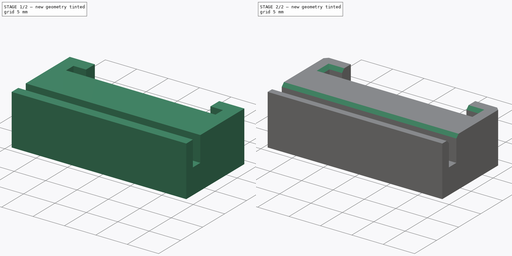
[diagram: build sequence overview — one tinted view per stage of 2, left to right]
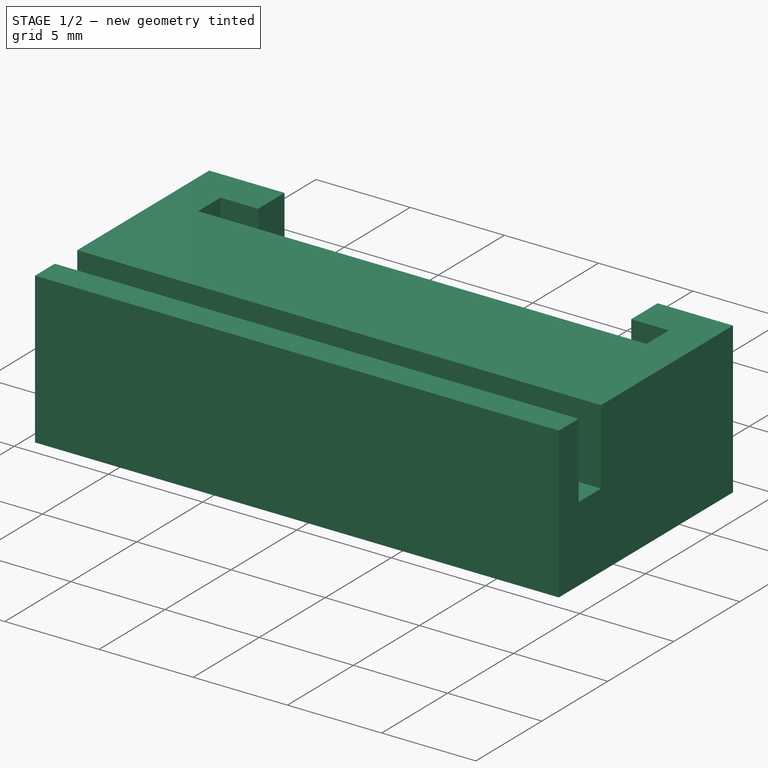
[diagram: stage 1 of 2 — iso view after this stage's code; geometry added in this stage tinted green]
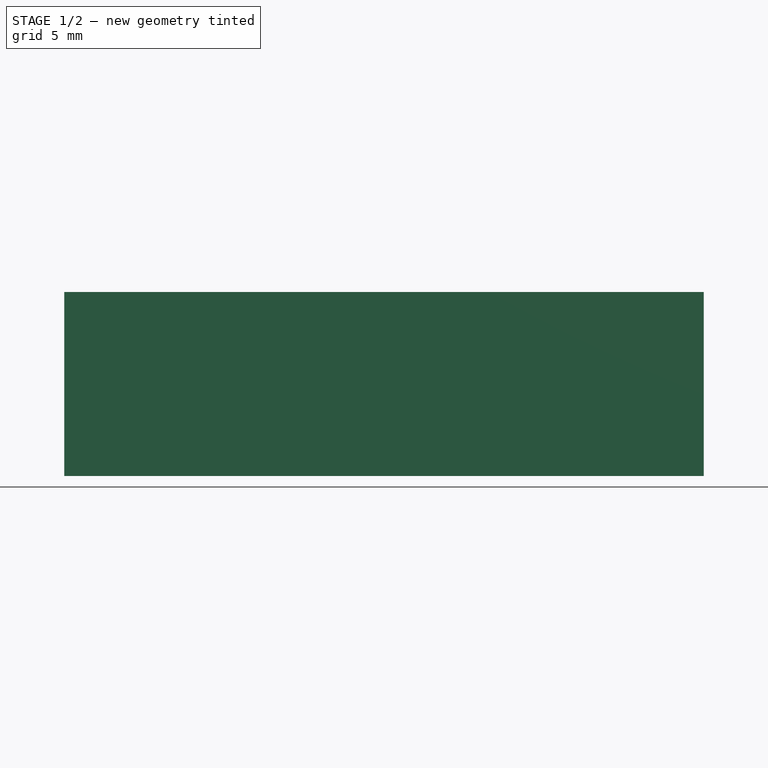
[diagram: stage 1 of 2 — front view after this stage's code; geometry added in this stage tinted green]
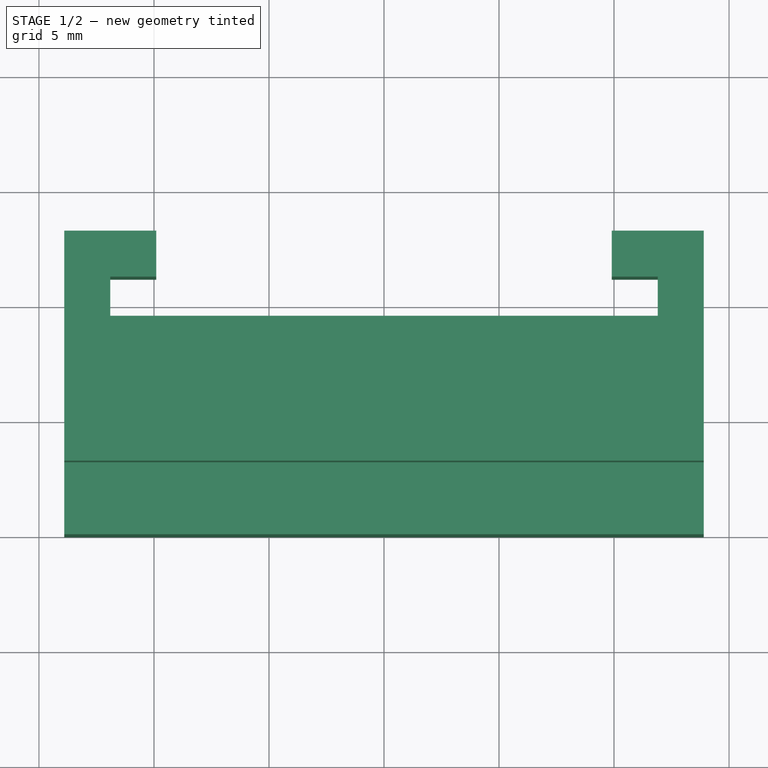
[diagram: stage 1 of 2 — top view after this stage's code; geometry added in this stage tinted green]
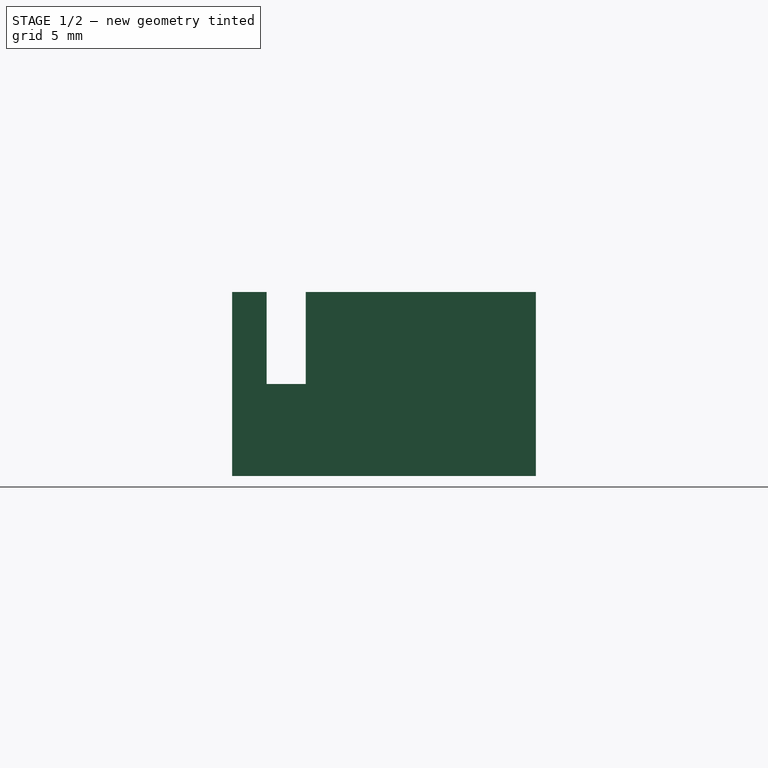
[diagram: stage 1 of 2 — right view after this stage's code; geometry added in this stage tinted green]
FCSTD DOCUMENT  (FreeCAD 0.19R24291 (Git))
Label: 20220101-gigatron-single-sd
License: All rights reserved
LicenseURL: http://en.wikipedia.org/wiki/All_rights_reserved
objects: Sketcher::SketchObject×2, Spreadsheet::Sheet×1, PartDesign::Pad×1, PartDesign::Pocket×1, PartDesign::Chamfer×1, PartDesign::Body×1
note: 9 computed .brp shape members not serialized (recipe doc carries the construction recipe); baked Part::Feature solids carry a one-line shape summary decoded from their .brp

FEATURE [Spreadsheet::Sheet] Spreadsheet
  cells = A2=tolerance; B2(free_space)==0.1mm; A3=PCB wide; B3(sd_wide)==23.6mm; A4=PCB thick; B4(sd_thick)==1.6mm; A5=outer thick; B5(outer_thick)==2mm; A6=carrier thick; B6(carrier_thick)==8mm; A7=under thick; B7(under_thick)==1.5mm; A8=sd distance to pcb; B8(sd_distance)==8mm; A9=chamfer; B9(chamfer)==0.5mm
FEATURE [Sketcher::SketchObject] Sketch
  FullyConstrained = true
  MapMode = 5
  Support = -> [XY_Plane]
  expr: Constraints[34] = Spreadsheet.outer_thick + Spreadsheet.sd_distance + Spreadsheet.sd_thick + Spreadsheet.free_space + Spreadsheet.under_thick
  expr: Constraints[33] = Spreadsheet.sd_wide + 2 * (Spreadsheet.free_space + Spreadsheet.outer_thick)
  expr: Constraints[32] = Spreadsheet.outer_thick
  expr: Constraints[29] = Spreadsheet.sd_thick + Spreadsheet.free_space
  expr: Constraints[31] = Spreadsheet.outer_thick
  expr: Constraints[28] = Spreadsheet.sd_wide + 2 * Spreadsheet.free_space
  sketch-geometry (12):
    g0: LineSegment StartX=-13.9 StartY=0 StartZ=0 EndX=-13.9 EndY=13.2 EndZ=0
    g1: LineSegment StartX=-13.9 StartY=13.2 StartZ=0 EndX=-9.9 EndY=13.2 EndZ=0
    g2: LineSegment StartX=-9.9 StartY=13.2 StartZ=0 EndX=-9.9 EndY=11.2 EndZ=0
    g3: LineSegment StartX=-9.9 StartY=11.2 StartZ=0 EndX=-11.9 EndY=11.2 EndZ=0
    g4: LineSegment StartX=-11.9 StartY=11.2 StartZ=0 EndX=-11.9 EndY=9.5 EndZ=0
    g5: LineSegment StartX=-11.9 StartY=9.5 StartZ=0 EndX=11.9 EndY=9.5 EndZ=0
    g6: LineSegment StartX=11.9 StartY=9.5 StartZ=0 EndX=11.9 EndY=11.2 EndZ=0
    g7: LineSegment StartX=11.9 StartY=11.2 StartZ=0 EndX=9.9 EndY=11.2 EndZ=0
    g8: LineSegment StartX=9.9 StartY=11.2 StartZ=0 EndX=9.9 EndY=13.2 EndZ=0
    g9: LineSegment StartX=9.9 StartY=13.2 StartZ=0 EndX=13.9 EndY=13.2 EndZ=0
    g10: LineSegment StartX=13.9 StartY=13.2 StartZ=0 EndX=13.9 EndY=0 EndZ=0
    g11: LineSegment StartX=13.9 StartY=0 StartZ=0 EndX=-13.9 EndY=0 EndZ=0
  constraints (35):
    c: PointOnObject(g0,g-1)
    c: Vertical(g0)
    c: Coincident(g0,g1)
    c: Horizontal(g1)
    c: Coincident(g1,g2)
    c: Vertical(g2)
    c: Coincident(g2,g3)
    c: Horizontal(g3)
    c: Coincident(g3,g4)
    c: Coincident(g5,g6)
    c: Vertical(g6)
    c: Coincident(g6,g7)
    c: Horizontal(g7)
    c: Coincident(g7,g8)
    c: Vertical(g8)
    c: Coincident(g8,g9)
    c: Horizontal(g9)
    c: Coincident(g9,g10)
    c: Vertical(g10)
    c: Coincident(g10,g11)
    c: Coincident(g11,g0)
    c: Vertical(g4)
    c: Equal(g2,g8)
    c: Equal(g1,g9)
    c: Equal(g3,g7)
    c: Equal(g4,g6)
    c: Coincident(g5,g4)
    c: Horizontal(g5)
    c: DistanceX(g5,g5) = 23.8
    c: DistanceY(g6,g6) = 1.7
    c: Symmetric(g0,g10,g-1)
    c: DistanceX(g7,g7) = 2
    c: DistanceY(g8,g8) = 2
    c: DistanceX(g0,g9) = 27.8
    c: DistanceY(g10,g10) = 13.2
FEATURE [PartDesign::Pad] Pad
  Direction = (1,1,1)
  Length = 8
  Length2 = 100
  Profile = -> Sketch
  Type = 0
  expr: Length = Spreadsheet.carrier_thick
FEATURE [Sketcher::SketchObject] Sketch001
  AttachmentOffset = pos=(0,0,8) rot=(0,0,1;0rad)
  FullyConstrained = true
  MapMode = 5
  Placement = pos=(0,0,8) rot=(0,0,1;0rad)
  Support = -> [XY_Plane]
  expr: Constraints[10] = Spreadsheet.sd_wide + 2 * (Spreadsheet.free_space + Spreadsheet.outer_thick)
  expr: Constraints[8] = Spreadsheet.sd_thick + Spreadsheet.free_space
  expr: .AttachmentOffset.Base.z = Spreadsheet.carrier_thick
  expr: Constraints[7] = Spreadsheet.under_thick
  sketch-geometry (4):
    g0: LineSegment StartX=-13.9 StartY=3.2 StartZ=0 EndX=13.9 EndY=3.2 EndZ=0
    g1: LineSegment StartX=13.9 StartY=3.2 StartZ=0 EndX=13.9 EndY=1.5 EndZ=0
    g2: LineSegment StartX=13.9 StartY=1.5 StartZ=0 EndX=-13.9 EndY=1.5 EndZ=0
    g3: LineSegment StartX=-13.9 StartY=1.5 StartZ=0 EndX=-13.9 EndY=3.2 EndZ=0
  constraints (11):
    c: Coincident(g0,g1)
    c: Coincident(g1,g2)
    c: Coincident(g2,g3)
    c: Coincident(g3,g0)
    c: Horizontal(g0)
    c: Vertical(g1)
    c: Vertical(g3)
    c: DistanceY(g-1,g2) = 1.5
    c: DistanceY(g1,g1) = 1.7
    c: Symmetric(g1,g2,g-2)
    c: DistanceX(g0,g0) = 27.8
FEATURE [PartDesign::Pocket] Pocket
  BaseFeature = -> Pad
  Length = 4
  Length2 = 100
  Profile = -> Sketch001
  Type = 0
  expr: Length = Spreadsheet.carrier_thick / 2
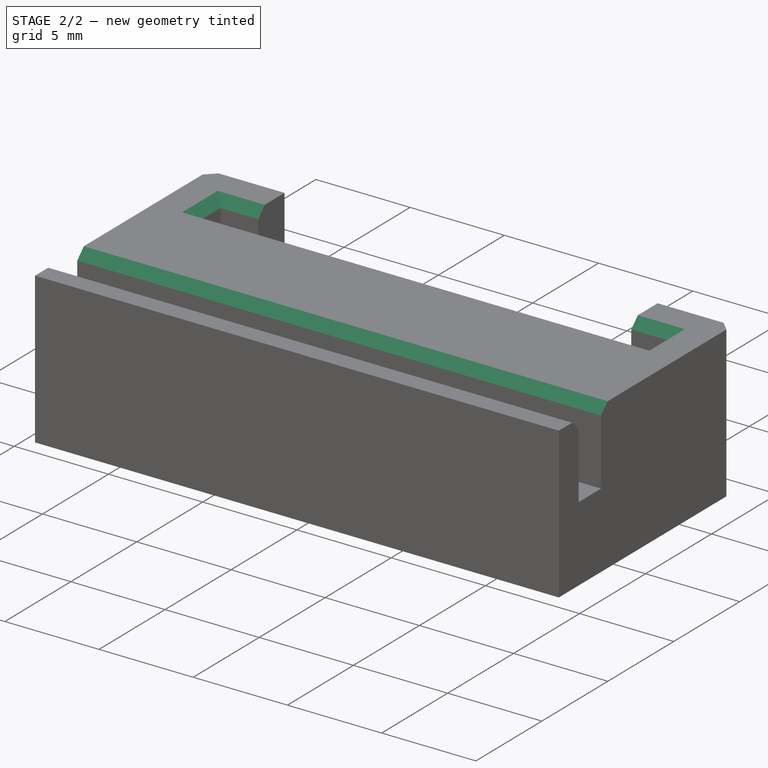
[diagram: stage 2 of 2 — iso view after this stage's code; geometry added in this stage tinted green]
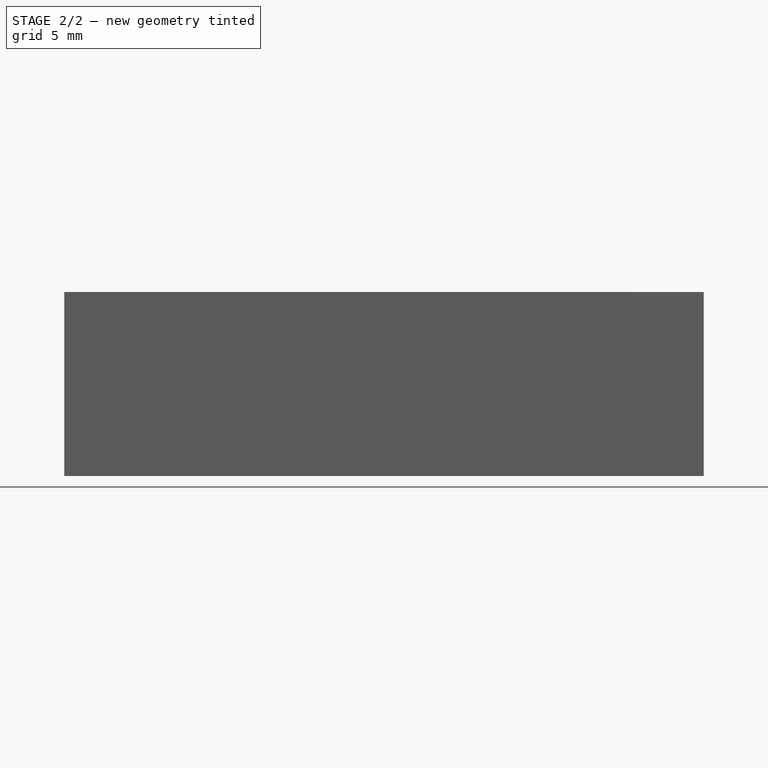
[diagram: stage 2 of 2 — front view after this stage's code; geometry added in this stage tinted green]
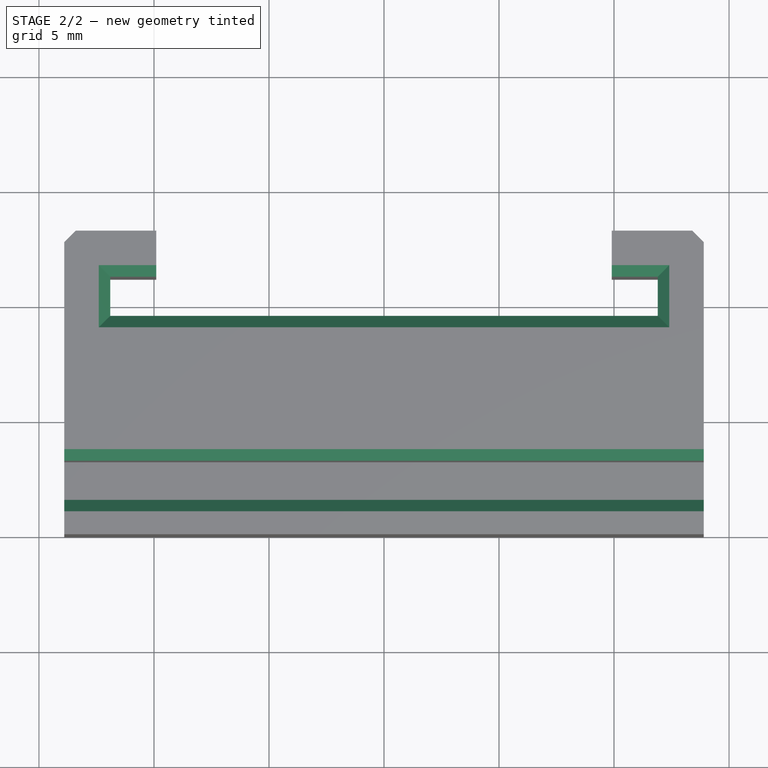
[diagram: stage 2 of 2 — top view after this stage's code; geometry added in this stage tinted green]
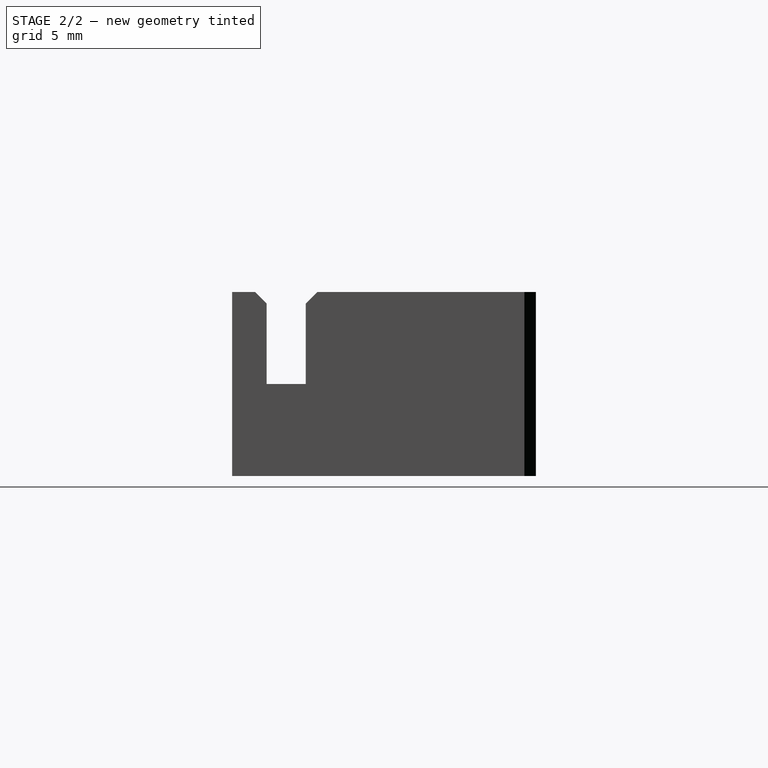
[diagram: stage 2 of 2 — right view after this stage's code; geometry added in this stage tinted green]
FEATURE [PartDesign::Chamfer] Chamfer
  Angle = 45
  Base = -> Pocket [Edge37,Edge22,Edge28,Edge29,Edge30,Edge27,Edge26,Edge2,Edge48]
  BaseFeature = -> Pocket
  ChamferType = 0
  FlipDirection = false
  Size = 0.5
  Size2 = 1
  SupportTransform = false
  expr: Size = Spreadsheet.chamfer
FEATURE [PartDesign::Body] Body
  Group = -> [Sketch,Pad,Sketch001,Pocket,Chamfer]
  Origin = -> Origin
  Tip = -> Chamfer
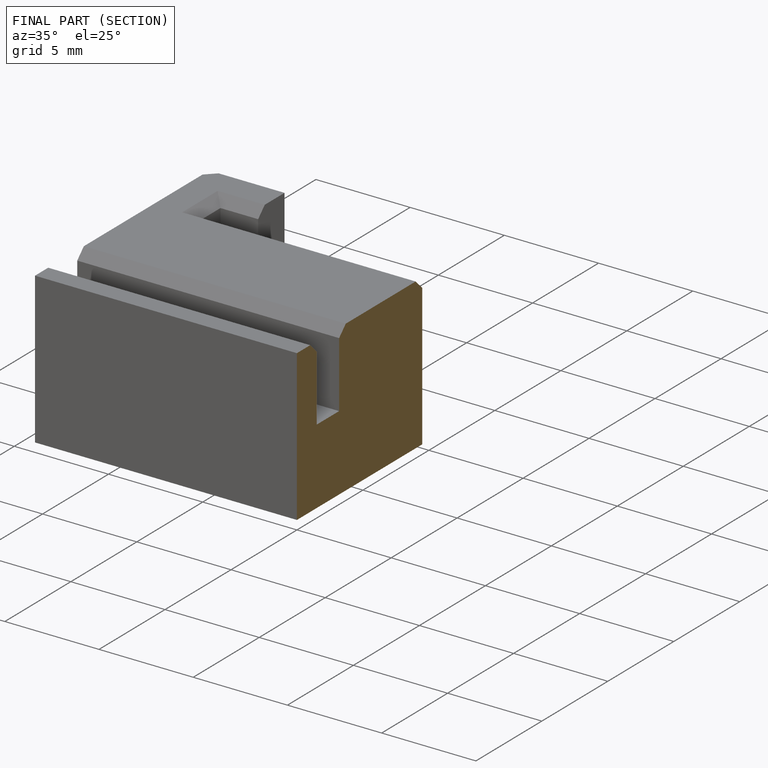
[diagram: finished part — half-section view (interior)]
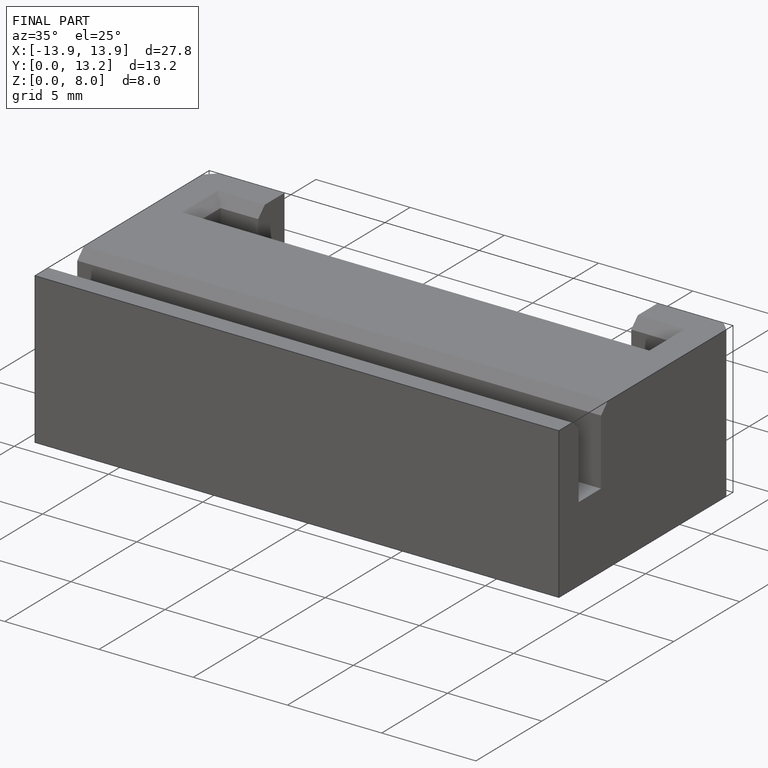
[diagram: finished part — iso view with bounding-box wireframe]
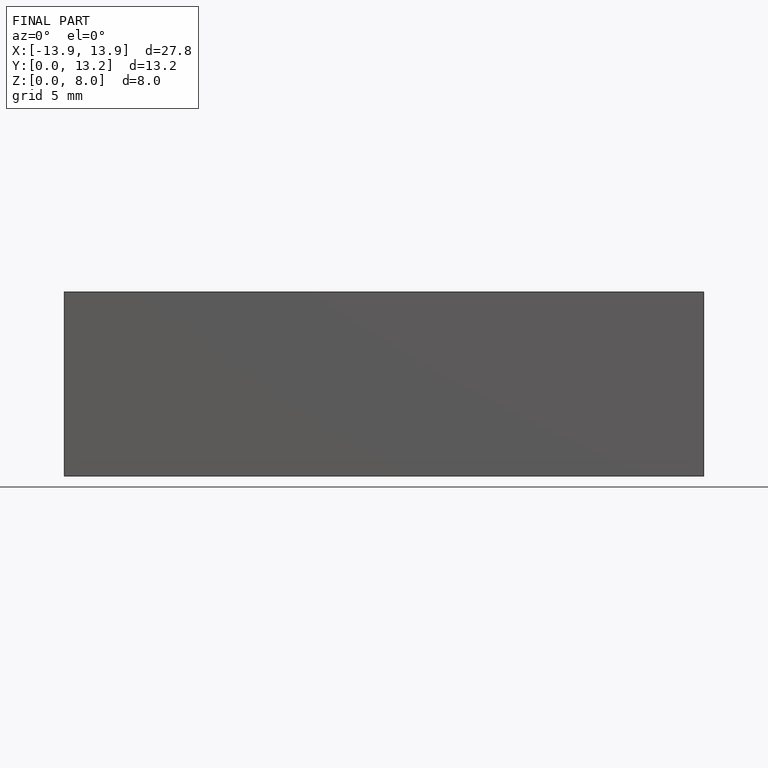
[diagram: finished part — front view with bounding-box wireframe]
